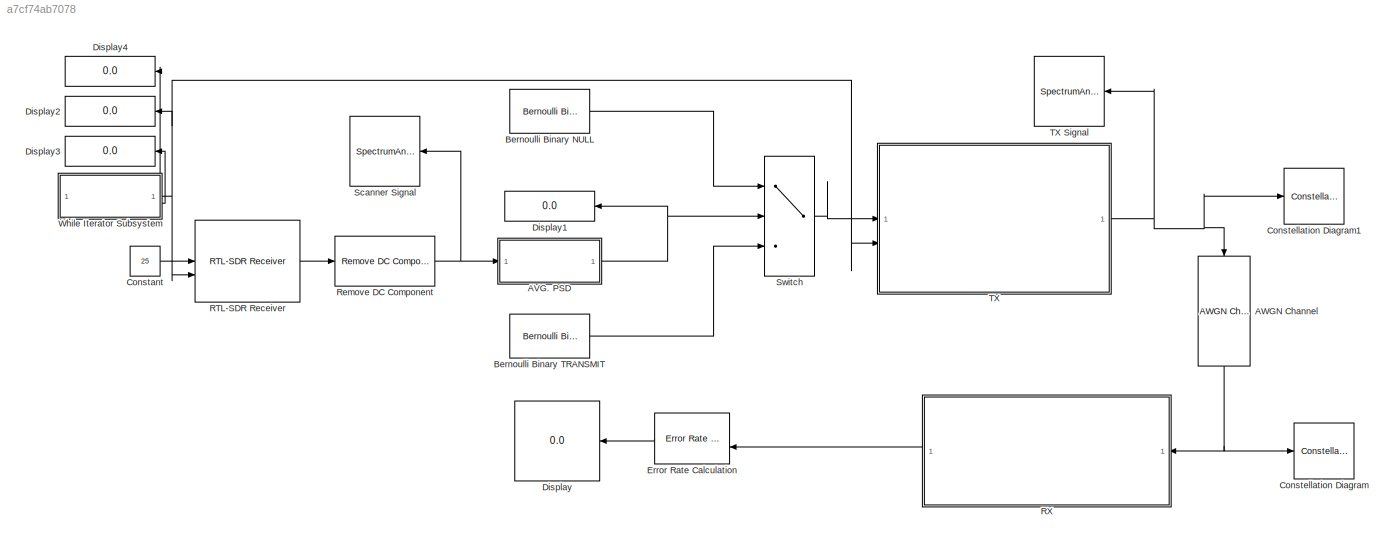
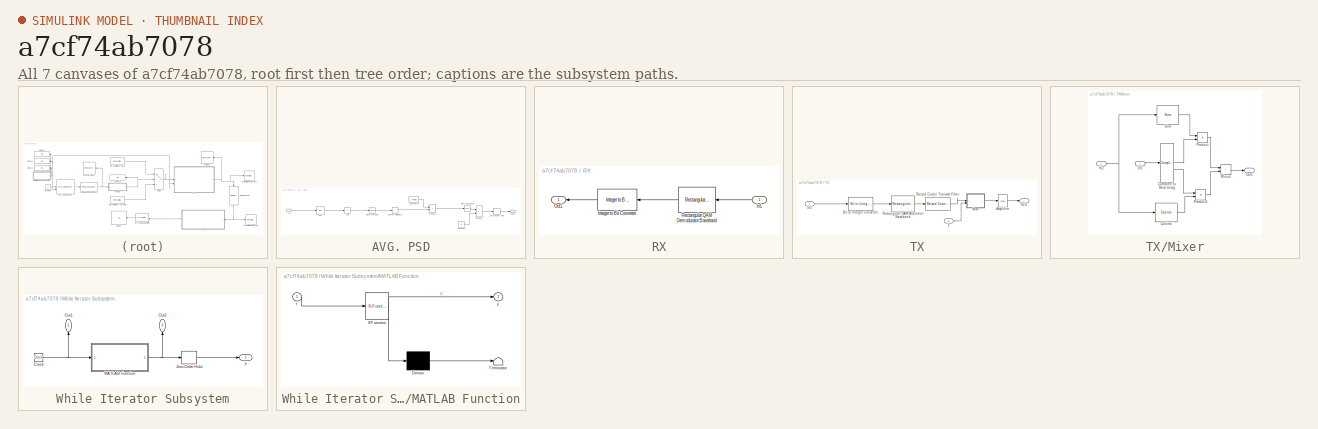
[diagram: thumbnail index - all 7 canvases of the model, root first then tree order]
MODEL slx_a7cf74ab7078
KIND model
CONFIG AbsTol = auto
CONFIG EnableMultiTasking = off
CONFIG FixedStep = 0.01
CONFIG MaxStep = auto
CONFIG MinStep = auto
CONFIG RelTol = 1e-3
CONFIG SampleTimeConstraint = Unconstrained
CONFIG SolverName = VariableStepAuto
CONFIG StartTime = 0.0
CONFIG StopTime = inf
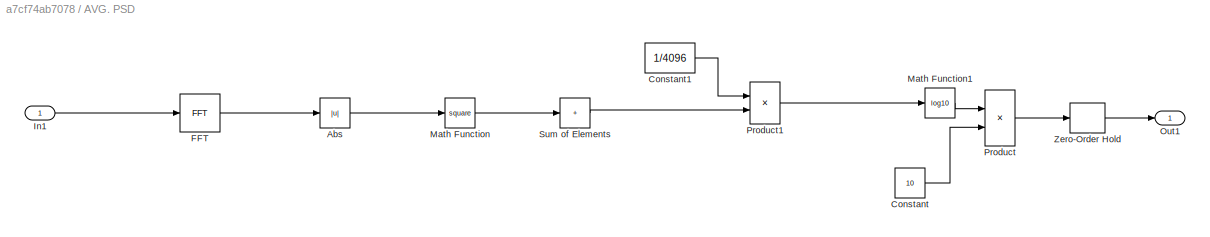
BLOCK [SubSystem] AVG. PSD
BLOCK [Abs] AVG. PSD/Abs
  OutDataTypeStr = single
  SaturateOnIntegerOverflow = off
BLOCK [Constant] AVG. PSD/Constant
  Value = 10
BLOCK [Constant] AVG. PSD/Constant1
  Value = 1/4096
BLOCK [Reference] AVG. PSD/FFT  REF=dspxfrm3/FFT
  SourceBlock = dspxfrm3/FFT
  SourceType = FFT
BLOCK [Inport] AVG. PSD/In1
BLOCK [Math] AVG. PSD/Math Function
  Operator = square
  OutDataTypeStr = single
BLOCK [Math] AVG. PSD/Math Function1
  Operator = log10
BLOCK [Outport] AVG. PSD/Out1
BLOCK [Product] AVG. PSD/Product
BLOCK [Product] AVG. PSD/Product1
BLOCK [Sum] AVG. PSD/Sum of Elements
  AccumDataTypeStr = single
  IconShape = rectangular
  Inputs = +
BLOCK [ZeroOrderHold] AVG. PSD/Zero-Order Hold
  SampleTime = 0.001
BLOCK [Reference] AWGN Channel  REF=commchan3/AWGN
Channel
  Commented = on
  NameLocation = left
  SourceBlock = commchan3/AWGN\nChannel
  SourceType = AWGN Channel
BLOCK [Reference] Bernoulli Binary NULL  REF=commrandsrc3/Bernoulli Binary
Generator
  SourceBlock = commrandsrc3/Bernoulli Binary\nGenerator
  SourceType = Bernoulli Binary Generator
BLOCK [Reference] Bernoulli Binary TRANSMIT  REF=commrandsrc3/Bernoulli Binary
Generator
  SourceBlock = commrandsrc3/Bernoulli Binary\nGenerator
  SourceType = Bernoulli Binary Generator
BLOCK [Constant] Constant
  Value = 25
BLOCK [ConstellationDiagram] Constellation Diagram
  Commented = on
  GraphicalSettings = {"Style":{"BackgroundColor":[0.12941176470588237,0.12941176470588237,0.12941176470588237],"AxesColor":[0.070588235294117646,0.070588235294117646,0.070588235294117646],"LabelsColor":[0.85098039215686272,0.85098039215686272,0.85098039215686272],"LineStyle":["NONE","NONE"],"LineColor":[[1,0.90980392156862744,0.39215686274509803],[1,0,0]],"LineWidth":[1,1],"Marker":[".","+"],"IsRefLine":[false,true],"...<+267ch>
  ReferenceConstellation = 16-QAM
  ScopeFrameLocation = window
  SymbolsToDisplay = 200
  SymbolsToDisplaySource = Property
  WasSavedAsWebScope = on
  WindowPosition = [-1876.000000,515.000000,571.000000,503.000000,]
  XLimits = [-1.46,1.46]
  YLimits = [-1.53,1.53]
BLOCK [ConstellationDiagram] Constellation Diagram1
  Commented = on
  GraphicalSettings = {"Style":{"BackgroundColor":[0.12941176470588237,0.12941176470588237,0.12941176470588237],"AxesColor":[0.070588235294117646,0.070588235294117646,0.070588235294117646],"LabelsColor":[0.85098039215686272,0.85098039215686272,0.85098039215686272],"LineStyle":["NONE"],"LineColor":[1,0,0],"LineWidth":1,"Marker":["none"],"IsRefLine":true,"FontSize":"small"},"ReferenceConstellation":{"AverageReferencePowe...<+201ch>
  ReferenceConstellation = 16-QAM
  ScopeFrameLocation = window
  ShowReferenceConstellation = off
  SymbolsToDisplay = 200
  SymbolsToDisplaySource = Property
  WasSavedAsWebScope = on
  WindowPosition = [-1883.000000,17.000000,570.000000,497.000000,]
  XLimits = [-3.36,5.24]
  YLimits = [-2.41,1.93]
BLOCK [Display] Display
  Commented = on
  Decimation = 1
  NameLocation = top
BLOCK [Display] Display1
  Decimation = 1
  NameLocation = top
BLOCK [Display] Display2
  Decimation = 1
  NameLocation = top
BLOCK [Display] Display3
  Decimation = 1
  NameLocation = top
BLOCK [Display] Display4
  Decimation = 1
  NameLocation = top
BLOCK [Reference] Error Rate Calculation  REF=commsink2/Error Rate
Calculation
  Commented = on
  NameLocation = top
  SourceBlock = commsink2/Error Rate\nCalculation
  SourceType = Error Rate Calculation
BLOCK [Reference] RTL-SDR Receiver  REF=sdrrlib/RTL-SDR
Receiver
  SourceBlock = sdrrlib/RTL-SDR\nReceiver
  SourceType = RTL-SDR Receiver
BLOCK [SubSystem] RX
  Commented = on
  NameLocation = top
BLOCK [Inport] RX/In1
  NameLocation = top
BLOCK [Reference] RX/Integer to Bit Converter  REF=simulink/Logic and Bit
Operations/Integer to Bit
Converter
  LibrarySourceBlock = commutil2/Integer to Bit\nConverter
  SourceBlock = simulink/Logic and Bit\nOperations/Integer to Bit\nConverter
  SourceType = Integer to Bit Converter
BLOCK [Outport] RX/Out1
  NameLocation = top
BLOCK [Reference] RX/Rectangular QAM Demodulator Baseband  REF=commdigbbndam3/Rectangular QAM
Demodulator
Baseband
  NameLocation = top
  SourceBlock = commdigbbndam3/Rectangular QAM\nDemodulator\nBaseband
  SourceType = Rectangular QAM Demodulator Baseband
BLOCK [Reference] Remove DC Component  REF=rtlsdr_book_library/Additional Tools/Remove DC  (lib defined in slx_12414fe83126, slx_a1558d2e1022)
Component
  SourceBlock = rtlsdr_book_library/Additional Tools/Remove DC\nComponent
  SourceProductName = RTL-SDR Book Library
BLOCK [SpectrumAnalyzer] Scanner Signal
  AllowFFTLengthLessThanSamplesPerUpdate = on
  AveragingMethod = Exponential
  AxesScaling = Manual
  FrequencyResolutionMethod = Window length
  GraphicalSettings = {"GraphicalSettings":{"Style":{"BackgroundColor":[0.12941176470588237,0.12941176470588237,0.12941176470588237],"AxesColor":[0,0,0],"LabelsColor":[0.6862745098039216,0.6862745098039216,0.6862745098039216],"PreserveColors":false,"Visible":[true],"LineStyle":["-"],"LineColor":[[1,0.9098039215686274,0.39215686274509803]],"LineWidth":[1.5],"Marker":["none"],"FontSize":"small"},"Cursors":{"Enabled":fals...<+892ch>
  Method = Welch
  NameLocation = top
  ScopeFrameLocation = window
  ScopeSpecificationString = spbscopes.SpectrumAnalyzerBlockCfg('CurrentConfiguration', extmgr.ConfigurationSet(extmgr.Configuration('Core','General UI',true),extmgr.Configuration('Core','Source UI',true),extmgr.Configuration('Sources','WiredSimulink',true),extmgr.Configuration('Visuals','Spectrum',true,'AxesProperties',struct('Color',{[0 0 0],[0 0 0]},'XColor',{[0.686274509803922 0.686274509803922 0.686274509803922],[0.68627...<+1369ch>
  Span = 2800000
  StartFrequency = -1400000
  StopFrequency = 1400000
  Tag = simrfV2util1/Spectrum\nAnalyzer
  WasSavedAsWebScope = on
  WindowLength = 4096
  WindowPosition = [-1912.000000,8.000000,949.000000,1011.000000,]
  YLimits = [-40 10]
BLOCK [Switch] Switch
  Criteria = u2 > Threshold
  LockScale = on
  OutDataTypeStr = single
  SaturateOnIntegerOverflow = off
  Threshold = 20
BLOCK [SubSystem] TX
BLOCK [SpectrumAnalyzer] TX Signal
  AllowFFTLengthLessThanSamplesPerUpdate = on
  AveragingMethod = Exponential
  AxesScaling = Manual
  FrequencyResolutionMethod = Window length
  GraphicalSettings = {"GraphicalSettings":{"Style":{"BackgroundColor":[0.12941176470588237,0.12941176470588237,0.12941176470588237],"AxesColor":[0,0,0],"LabelsColor":[0.6862745098039216,0.6862745098039216,0.6862745098039216],"PreserveColors":false,"Visible":[true],"LineStyle":["-"],"LineColor":[[1,0.9098039215686274,0.39215686274509803]],"LineWidth":[1.5],"Marker":["none"],"FontSize":"small"},"Cursors":{"Enabled":fals...<+892ch>
  Method = Welch
  NameLocation = top
  ScopeFrameLocation = window
  ScopeSpecificationString = spbscopes.SpectrumAnalyzerBlockCfg('CurrentConfiguration', extmgr.ConfigurationSet(extmgr.Configuration('Core','General UI',true),extmgr.Configuration('Core','Source UI',true),extmgr.Configuration('Sources','WiredSimulink',true),extmgr.Configuration('Visuals','Spectrum',true,'AxesProperties',struct('Color',{[0 0 0],[0 0 0]},'XColor',{[0.686274509803922 0.686274509803922 0.686274509803922],[0.68627...<+1369ch>
  Span = 2800000
  StartFrequency = -1400000
  StopFrequency = 1400000
  Tag = simrfV2util1/Spectrum\nAnalyzer
  WasSavedAsWebScope = on
  WindowLength = 4096
  WindowPosition = [-954.000000,9.000000,948.000000,1011.000000,]
  YLimits = [-15,10]
BLOCK [Reference] TX/Amplifier  REF=rfmathmodels2/Amplifier
  SourceBlock = rfmathmodels2/Amplifier
  SourceType = rf.Amplifier
BLOCK [Reference] TX/Bit to Integer Converter  REF=simulink/Logic and Bit
Operations/Bit to Integer
Converter
  SourceBlock = simulink/Logic and Bit\nOperations/Bit to Integer\nConverter
  SourceType = Bit to Integer Converter
BLOCK [Inport] TX/In1
BLOCK [SubSystem] TX/Mixer
BLOCK [ComplexToRealImag] TX/Mixer/Complex to Real-Imag
BLOCK [Reference] TX/Mixer/Cosine  REF=simulink/Lookup
Tables/Cosine
  SourceBlock = simulink/Lookup\nTables/Cosine
  SourceType = Sine and Cosine
BLOCK [Inport] TX/Mixer/In1
BLOCK [Inport] TX/Mixer/In2
  Port = 2
BLOCK [Sum] TX/Mixer/Minus
  IconShape = rectangular
BLOCK [Outport] TX/Mixer/Out1
BLOCK [Product] TX/Mixer/Product
BLOCK [Product] TX/Mixer/Product1
BLOCK [Reference] TX/Mixer/Sine  REF=simulink/Lookup
Tables/Sine
  SourceBlock = simulink/Lookup\nTables/Sine
  SourceType = Sine and Cosine
BLOCK [Outport] TX/Out1
BLOCK [Reference] TX/Raised Cosine Transmit Filter  REF=commfilt2/Raised Cosine
Transmit Filter
  SourceBlock = commfilt2/Raised Cosine\nTransmit Filter
  SourceType = Raised Cosine Transmit Filter
BLOCK [Reference] TX/Rectangular QAM Modulator Baseband  REF=commdigbbndam3/Rectangular QAM
Modulator
Baseband
  SourceBlock = commdigbbndam3/Rectangular QAM\nModulator\nBaseband
  SourceType = Rectangular QAM Modulator Baseband
BLOCK [Inport] TX/y
  Port = 2
BLOCK [SubSystem] While Iterator Subsystem
  TreatAsAtomicUnit = on
BLOCK [Clock] While Iterator Subsystem/Clock
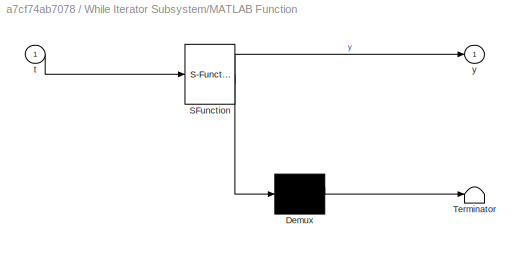
BLOCK [SubSystem] While Iterator Subsystem/MATLAB Function
  ErrorFcn = Stateflow.Translate.translate
  PermitHierarchicalResolution = ExplicitOnly
  SFBlockType = MATLAB Function
  TreatAsAtomicUnit = on
BLOCK [Demux] While Iterator Subsystem/MATLAB Function/ Demux 
  Outputs = 1
BLOCK [S-Function] While Iterator Subsystem/MATLAB Function/ SFunction 
  EnableBusSupport = on
  FunctionName = sf_sfun
  PortCounts = [1 2]
  SFcnIsStateOwnerBlock = off
  SFunctionDeploymentMode = off
  Tag = Stateflow S-Function 1
BLOCK [Terminator] While Iterator Subsystem/MATLAB Function/ Terminator 
BLOCK [Inport] While Iterator Subsystem/MATLAB Function/t
BLOCK [Outport] While Iterator Subsystem/MATLAB Function/y
BLOCK [Outport] While Iterator Subsystem/Out1
  NameLocation = right
  Port = 2
BLOCK [Outport] While Iterator Subsystem/Out2
  NameLocation = right
  Port = 3
BLOCK [ZeroOrderHold] While Iterator Subsystem/Zero-Order Hold
  SampleTime = -1
BLOCK [Outport] While Iterator Subsystem/y
LINE AVG. PSD/Abs:1 -> AVG. PSD/Math Function:1
LINE AVG. PSD/Constant1:1 -> AVG. PSD/Product1:1
LINE AVG. PSD/Constant:1 -> AVG. PSD/Product:2
LINE AVG. PSD/FFT:1 -> AVG. PSD/Abs:1
LINE AVG. PSD/In1:1 -> AVG. PSD/FFT:1
LINE AVG. PSD/Math Function1:1 -> AVG. PSD/Product:1
LINE AVG. PSD/Math Function:1 -> AVG. PSD/Sum of Elements:1
LINE AVG. PSD/Product1:1 -> AVG. PSD/Math Function1:1
LINE AVG. PSD/Product:1 -> AVG. PSD/Zero-Order Hold:1
LINE AVG. PSD/Sum of Elements:1 -> AVG. PSD/Product1:2
LINE AVG. PSD/Zero-Order Hold:1 -> AVG. PSD/Out1:1
NET AVG. PSD:1 -> Display1:1, Switch:2
NET AWGN Channel:1 -> Constellation Diagram:1, RX:1
LINE Bernoulli Binary NULL:1 -> Switch:1
LINE Bernoulli Binary TRANSMIT:1 -> Switch:3
LINE Constant:1 -> RTL-SDR Receiver:2
LINE Error Rate Calculation:1 -> Display:1
LINE RTL-SDR Receiver:1 -> Remove DC Component:1
LINE RX/In1:1 -> RX/Rectangular QAM Demodulator Baseband:1
LINE RX/Integer to Bit Converter:1 -> RX/Out1:1
LINE RX/Rectangular QAM Demodulator Baseband:1 -> RX/Integer to Bit Converter:1
LINE RX:1 -> Error Rate Calculation:2
NET Remove DC Component:1 -> AVG. PSD:1, Scanner Signal:1
LINE Switch:1 -> TX:1
LINE TX/Amplifier:1 -> TX/Out1:1
LINE TX/Bit to Integer Converter:1 -> TX/Rectangular QAM Modulator Baseband:1
LINE TX/In1:1 -> TX/Bit to Integer Converter:1
LINE TX/Mixer/Complex to Real-Imag:1 -> TX/Mixer/Product:2
LINE TX/Mixer/Complex to Real-Imag:2 -> TX/Mixer/Product1:1
LINE TX/Mixer/Cosine:1 -> TX/Mixer/Product1:2
LINE TX/Mixer/In1:1 -> TX/Mixer/Complex to Real-Imag:1
NET TX/Mixer/In2:1 -> TX/Mixer/Cosine:1, TX/Mixer/Sine:1
LINE TX/Mixer/Minus:1 -> TX/Mixer/Out1:1
LINE TX/Mixer/Product1:1 -> TX/Mixer/Minus:2
LINE TX/Mixer/Product:1 -> TX/Mixer/Minus:1
LINE TX/Mixer/Sine:1 -> TX/Mixer/Product:1
LINE TX/Mixer:1 -> TX/Amplifier:1
LINE TX/Raised Cosine Transmit Filter:1 -> TX/Mixer:1
LINE TX/Rectangular QAM Modulator Baseband:1 -> TX/Raised Cosine Transmit Filter:1
LINE TX/y:1 -> TX/Mixer:2
NET TX:1 -> AWGN Channel:1, Constellation Diagram1:1, TX Signal:1
NET While Iterator Subsystem/Clock:1 -> While Iterator Subsystem/MATLAB Function:1, While Iterator Subsystem/Out1:1
NET While Iterator Subsystem/MATLAB Function:1 -> While Iterator Subsystem/Out2:1, While Iterator Subsystem/Zero-Order Hold:1
LINE While Iterator Subsystem/Zero-Order Hold:1 -> While Iterator Subsystem/y:1
NET While Iterator Subsystem:1 -> Display2:1, RTL-SDR Receiver:1, TX:2
LINE While Iterator Subsystem:2 -> Display3:1
LINE While Iterator Subsystem:3 -> Display4:1
note: NET lines group one-source signal fan-out (src -> all destinations, sorted); 1:1 wires keep LINE
CHART While Iterator
Subsystem/MATLAB Function states=1 transitions=1
  STATE_LABEL 'eML_blk_kernel()'
  STATE_LABEL 'SCRIPT:\nfunction y = MATLAB_Function(t)\n    % Array of center frequencies\n    %centerFreq = [939515400, 941515400, 943515400, 945515400, 947515400];\n    %centerFreq = 433000000:2e6:1700000000;\n    %centerFreq = 795000000;\n    centerFreq = 435000000; \n    % Define a persistent variable to hold the current index\n    persistent freqIndex;\n    persistent lastUpdate;\n    \n    % Initialize persistent va...<+783ch>'
CHART  states=0 transitions=0
